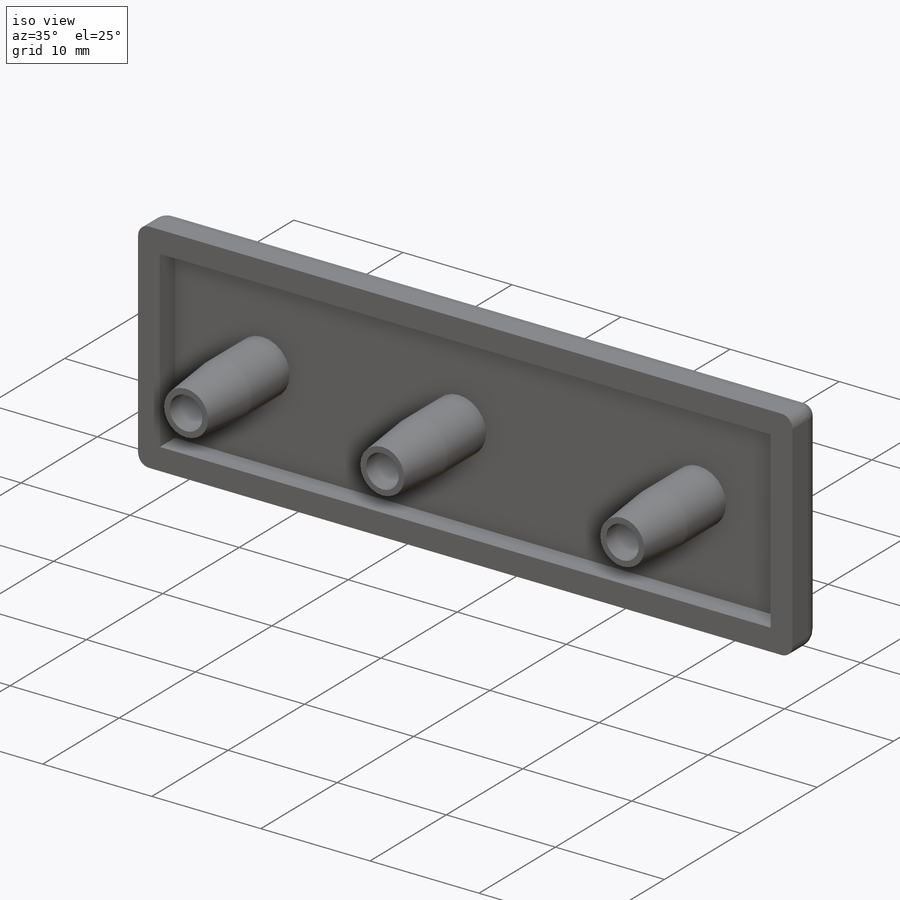
[diagram: iso view]
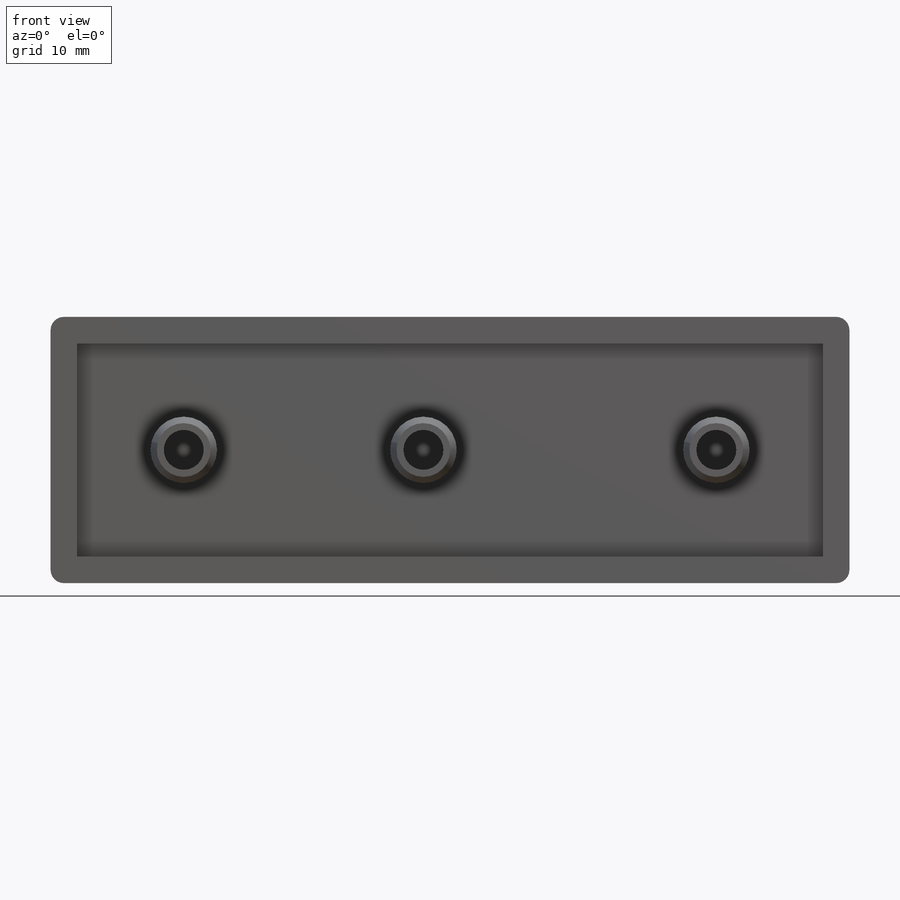
[diagram: front view]
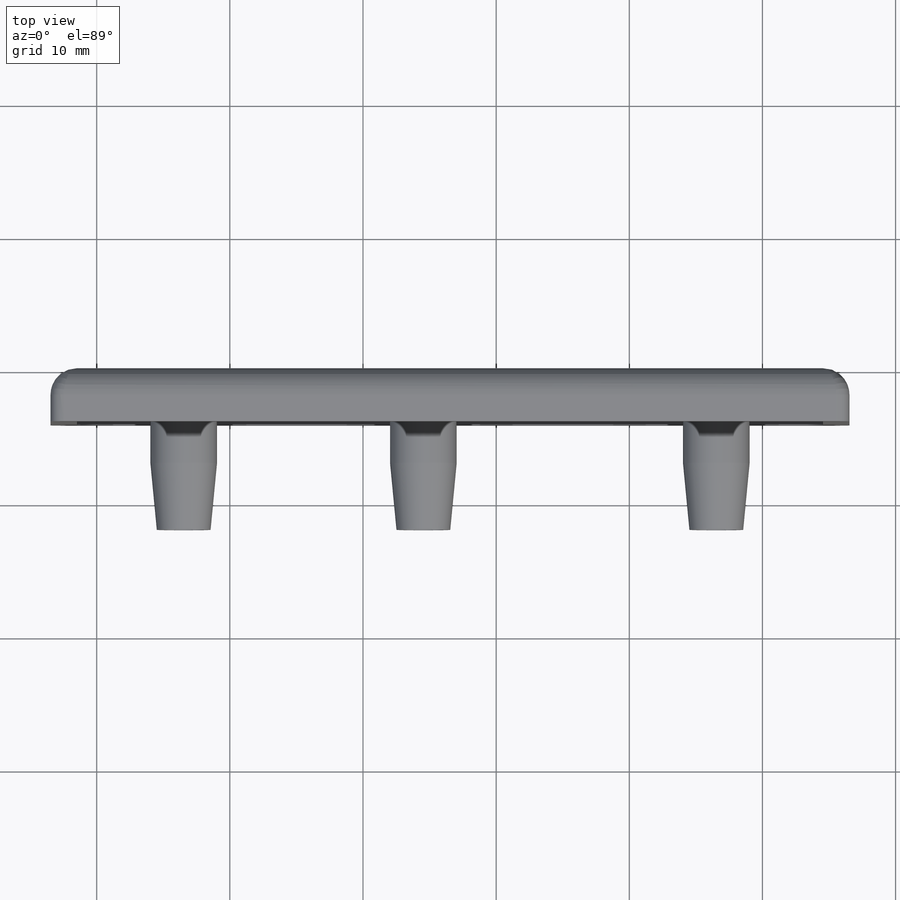
[diagram: top view]
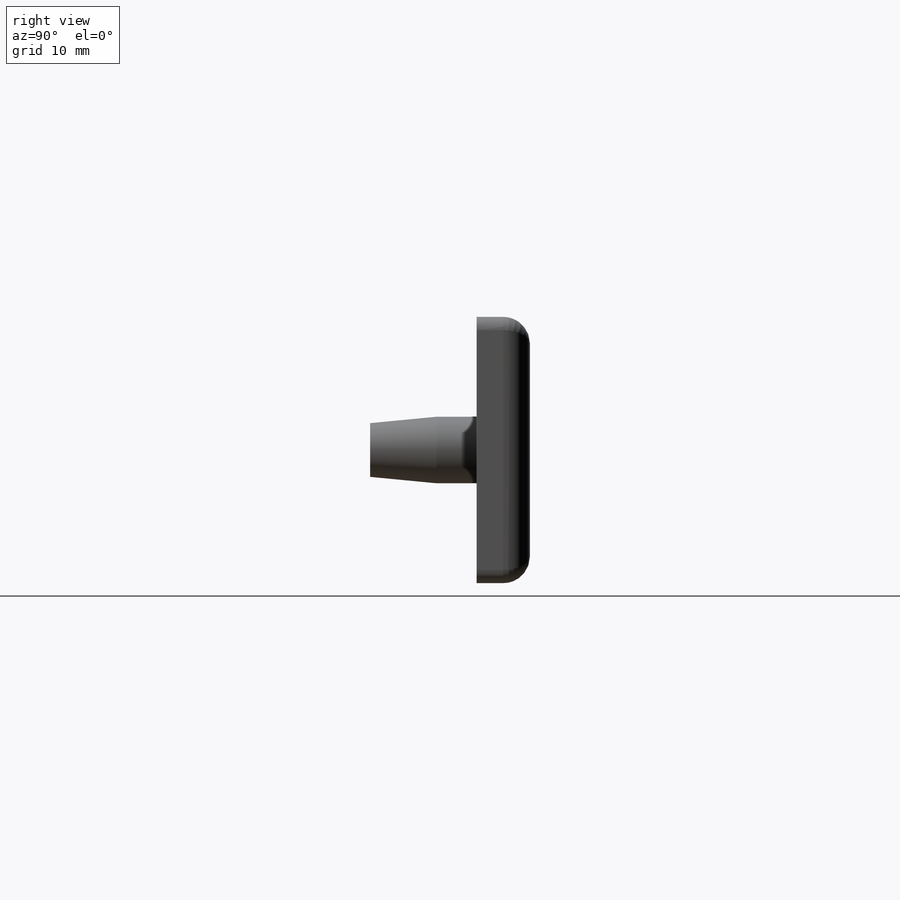
[diagram: right view]
SOLIDWORKS PART (.sldprt)
format: sldprt  version: not decoded by parser v0  size: 408,576 bytes
history: native  units: mm
features: sketch x7, plane x5, extrude x4, chamfer x3, cut_extrude x3, fillet x2, material x1, shell x1 + 1 further entry (+12 scaffold rows collapsed)
feature tree (39):
  scaffold x12  (default folders/planes/origin — collapsed)
  material  "材质 <未指定>"
  plane  "前视基准面"
  plane  "上视基准面"
  plane  "右视基准面"
  "系列零件设计表"
  sketch  "草图1"  dims[D1=60.0mm D2=20.0mm]
  extrude  "拉伸1"  Depth=4mm
  fillet  "圆角1"  Radius=1mm
  fillet  "圆角2"  Radius=2mm
  plane  "基准面1"  Offset=4mm
  plane  "基准面2"  Offset=4mm
  shell  "抽壳2"  Thickness=2mm
  sketch  "草图5"  dims[D3=5.0mm D1=8.0mm D2=8.0mm]
  extrude  "拉伸5"  Depth=10mm
  chamfer  "倒角1"  Distance=5mm Angle=5.5deg
  sketch  "草图6"  dims[D1=3.0mm]
  cut_extrude  "切除-拉伸1"  Depth=10mm
  sketch  "草图7"  dims[D3=5.0mm D1=8.0mm D2=8.0mm]
  extrude  "拉伸6"  Depth=10mm
  chamfer  "倒角2"  Distance=5mm Angle=5.5deg
  sketch  "草图8"  dims[D1=3.0mm]
  cut_extrude  "切除-拉伸2"  Depth=10mm
  sketch  "草图9"  dims[D3=5.0mm D1=8.0mm D2=30.0mm]
  extrude  "拉伸7"  Depth=10mm
  chamfer  "倒角3"  Distance=5mm Angle=5.5deg
  sketch  "草图10"  dims[D1=3.0mm]
  cut_extrude  "切除-拉伸3"  Depth=10mm
decode coverage: 20 of 20 modeling features carry decoded parameters; 1 rows unclassified (native names shown)
note: suppression state not decoded; provenance and decode notes live in map.json
